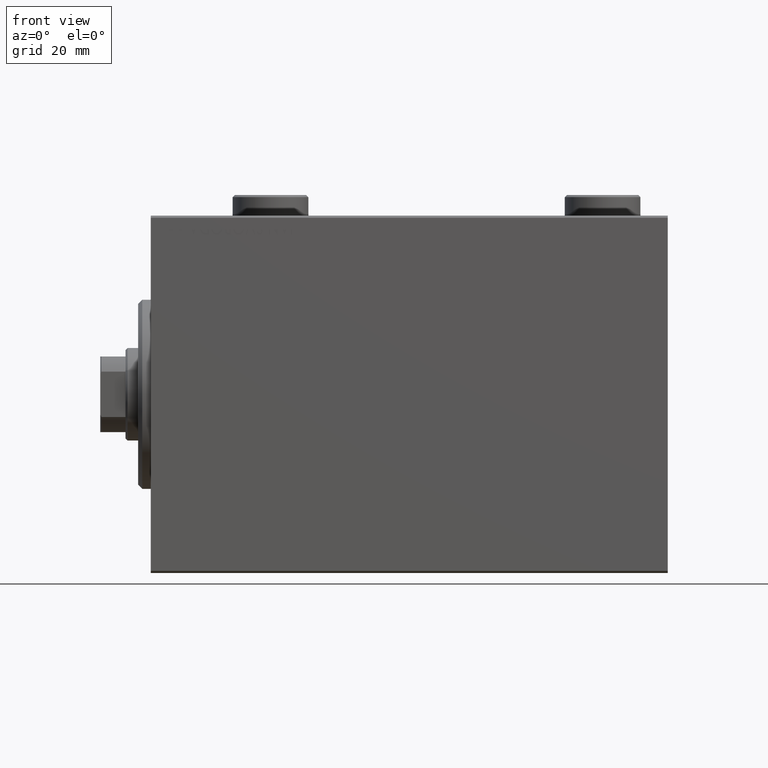
[diagram: clean part render]
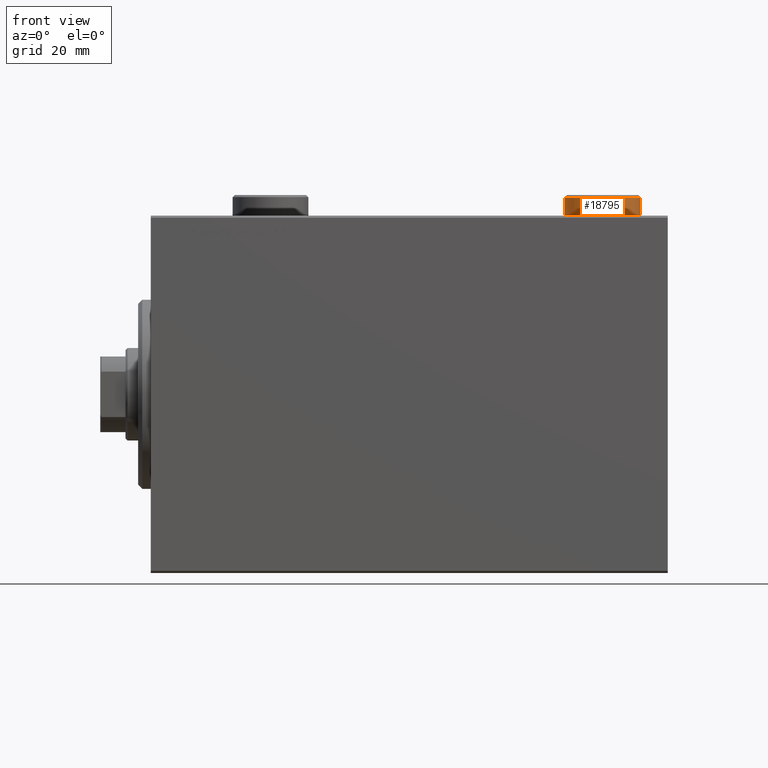
[diagram: same view with one face highlighted and labeled with its STEP entity id]
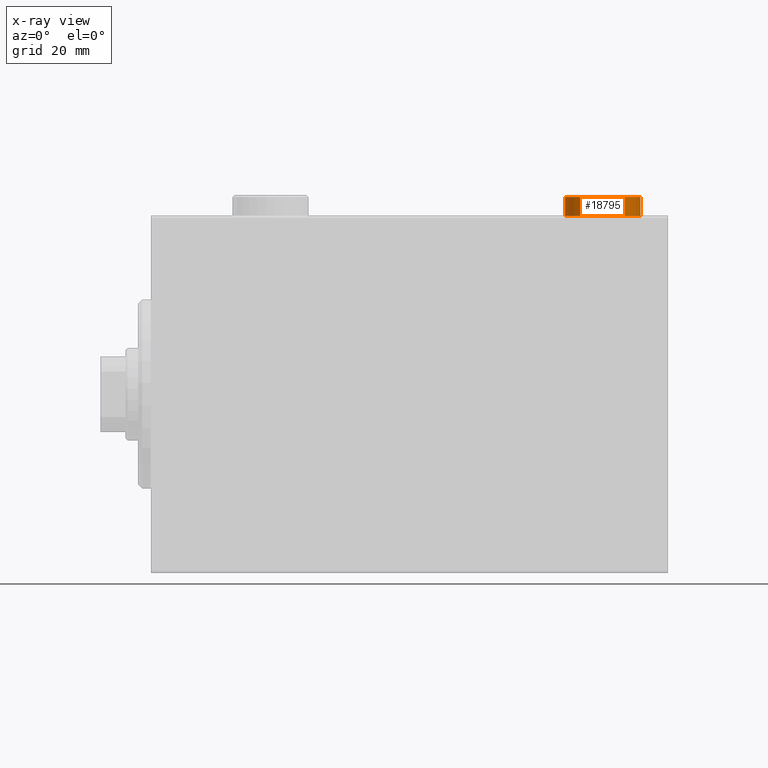
[diagram: x-ray of the same camera — body ghosted, the highlighted face saturated]
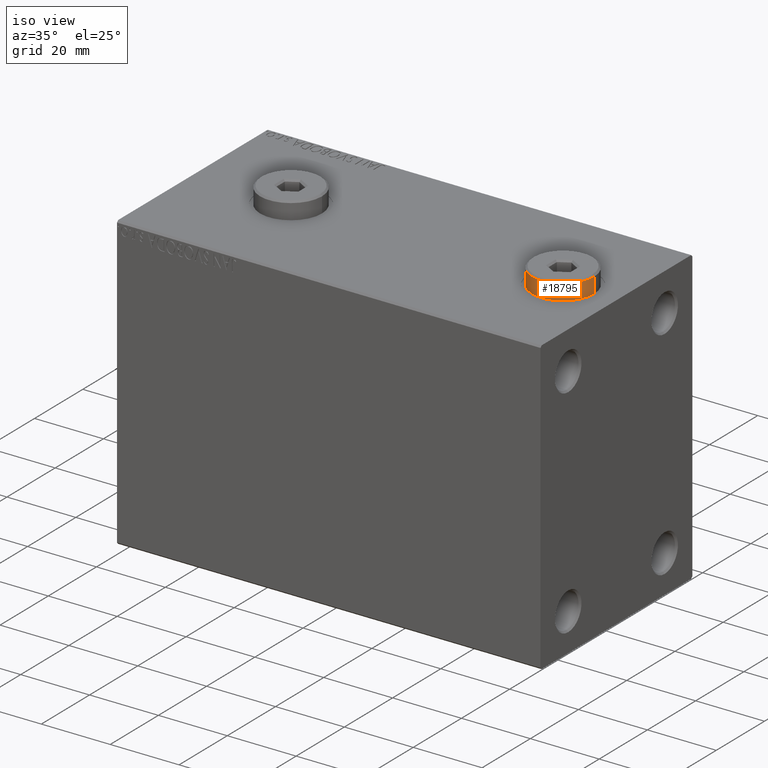
[diagram: same view with one face highlighted and labeled with its STEP entity id]
A machine part, front view. The second image highlights one B-rep face of the part: STEP entity #18795.
The next image is the same camera in x-ray: the body ghosted, the highlighted face saturated — about 3% of this face is hidden behind the body in this view.
A second angle (iso view) of the same face is appended — the face is thin or edge-on in the first view.
In plain terms, the highlighted cylindrical surface (partial cylindrical patch) has radius 9 mm, axis along (-0, -0, -1).
Its self-contained STEP definition (entity closure, byte-faithful):
#2022 = DIRECTION ( 'NONE',  ( 1.000000000000000000, 0.000000000000000000, 0.000000000000000000 ) ) ;
#3153 = VERTEX_POINT ( 'NONE', #20915 ) ;
#4588 = LINE ( 'NONE', #19305, #42925 ) ;
#6964 = DIRECTION ( 'NONE',  ( -0.000000000000000000, -0.000000000000000000, -1.000000000000000000 ) ) ;
#7903 = CIRCLE ( 'NONE', #25634, 9.000000000000001776 ) ;
#10928 = CARTESIAN_POINT ( 'NONE',  ( 9.000000000000001776, 1.102182119232617911E-15, 0.000000000000000000 ) ) ;
#11660 = ORIENTED_EDGE ( 'NONE', *, *, #16019, .F. ) ;
#15678 = CARTESIAN_POINT ( 'NONE',  ( 9.000000000000001776, 1.102182119232617911E-15, 4.500000000000006217 ) ) ;
#16019 = EDGE_CURVE ( 'NONE', #16267, #21519, #20550, .T. ) ;
#16267 = VERTEX_POINT ( 'NONE', #15678 ) ;
#16594 = EDGE_CURVE ( 'NONE', #3153, #17181, #4588, .T. ) ;
#16983 = ORIENTED_EDGE ( 'NONE', *, *, #40936, .T. ) ;
#17181 = VERTEX_POINT ( 'NONE', #41706 ) ;
#18795 = ADVANCED_FACE ( 'NONE', ( #25337 ), #39871, .T. ) ;
#19279 = CARTESIAN_POINT ( 'NONE',  ( 0.000000000000000000, 0.000000000000000000, 0.000000000000000000 ) ) ;
#19305 = CARTESIAN_POINT ( 'NONE',  ( -9.000000000000001776, 0.000000000000000000, 5.000000000000000000 ) ) ;
#20331 = DIRECTION ( 'NONE',  ( 1.000000000000000000, 0.000000000000000000, 0.000000000000000000 ) ) ;
#20547 = AXIS2_PLACEMENT_3D ( 'NONE', #20559, #37844, #20331 ) ;
#20550 = LINE ( 'NONE', #23777, #38483 ) ;
#20559 = CARTESIAN_POINT ( 'NONE',  ( 0.000000000000000000, 0.000000000000000000, 4.500000000000006217 ) ) ;
#20915 = CARTESIAN_POINT ( 'NONE',  ( -9.000000000000001776, 0.000000000000000000, 4.500000000000006217 ) ) ;
#21519 = VERTEX_POINT ( 'NONE', #10928 ) ;
#23777 = CARTESIAN_POINT ( 'NONE',  ( 9.000000000000001776, 1.102182119232617911E-15, 5.000000000000000000 ) ) ;
#25337 = FACE_OUTER_BOUND ( 'NONE', #37486, .T. ) ;
#25570 = CARTESIAN_POINT ( 'NONE',  ( 0.000000000000000000, 0.000000000000000000, 5.000000000000000000 ) ) ;
#25634 = AXIS2_PLACEMENT_3D ( 'NONE', #19279, #32875, #2022 ) ;
#26906 = ORIENTED_EDGE ( 'NONE', *, *, #34171, .T. ) ;
#29493 = DIRECTION ( 'NONE',  ( -1.000000000000000000, 0.000000000000000000, 0.000000000000000000 ) ) ;
#32662 = DIRECTION ( 'NONE',  ( -0.000000000000000000, -0.000000000000000000, -1.000000000000000000 ) ) ;
#32875 = DIRECTION ( 'NONE',  ( 0.000000000000000000, 0.000000000000000000, 1.000000000000000000 ) ) ;
#34171 = EDGE_CURVE ( 'NONE', #17181, #21519, #7903, .T. ) ;
#36406 = DIRECTION ( 'NONE',  ( -0.000000000000000000, -0.000000000000000000, -1.000000000000000000 ) ) ;
#37486 = EDGE_LOOP ( 'NONE', ( #11660, #16983, #37745, #26906 ) ) ;
#37745 = ORIENTED_EDGE ( 'NONE', *, *, #16594, .T. ) ;
#37844 = DIRECTION ( 'NONE',  ( 0.000000000000000000, 0.000000000000000000, -1.000000000000000000 ) ) ;
#38483 = VECTOR ( 'NONE', #6964, 1000.000000000000000 ) ;
#38576 = AXIS2_PLACEMENT_3D ( 'NONE', #25570, #36406, #29493 ) ;
#39871 = CYLINDRICAL_SURFACE ( 'NONE', #38576, 9.000000000000001776 ) ;
#40936 = EDGE_CURVE ( 'NONE', #16267, #3153, #41900, .T. ) ;
#41706 = CARTESIAN_POINT ( 'NONE',  ( -9.000000000000001776, 0.000000000000000000, 0.000000000000000000 ) ) ;
#41900 = CIRCLE ( 'NONE', #20547, 9.000000000000001776 ) ;
#42925 = VECTOR ( 'NONE', #32662, 1000.000000000000000 ) ;